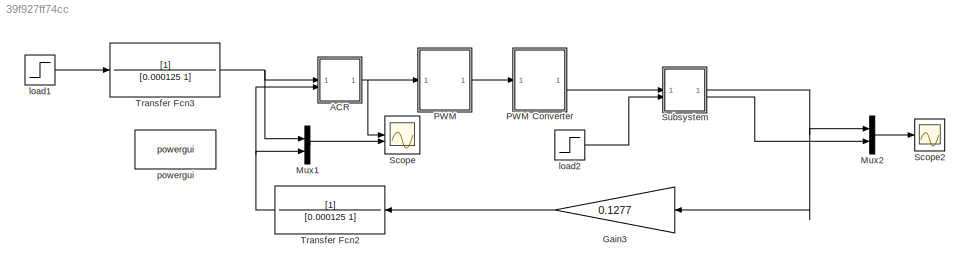
MODEL slx_39f927ff74cc
KIND model
CONFIG AbsTol = auto
CONFIG EnableMultiTasking = off
CONFIG FixedStep = auto
CONFIG MaxStep = 1e-5
CONFIG MinStep = auto
CONFIG RelTol = 1e-3
CONFIG SampleTimeConstraint = Unconstrained
CONFIG SolverName = ode45
CONFIG StartTime = 0.0
CONFIG StopTime = 0.05
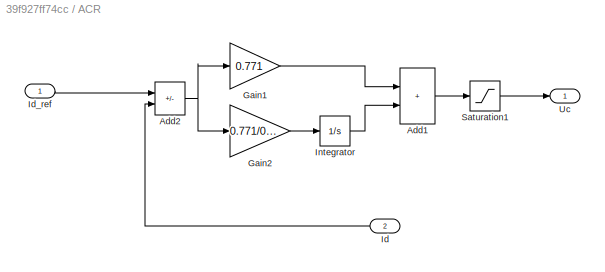
BLOCK [SubSystem] ACR
BLOCK [Sum] ACR/Add1
  IconShape = rectangular
BLOCK [Sum] ACR/Add2
  IconShape = rectangular
  Inputs = +-
BLOCK [Gain] ACR/Gain1
  Gain = 0.771
BLOCK [Gain] ACR/Gain2
  Gain = 0.771/0.0144
BLOCK [Inport] ACR/Id
  Port = 2
BLOCK [Inport] ACR/Id_ref
BLOCK [Integrator] ACR/Integrator
  LimitOutput = on
  LowerSaturationLimit = -5
  UpperSaturationLimit = 5
BLOCK [Saturate] ACR/Saturation1
  LowerLimit = -5
  UpperLimit = 5
BLOCK [Outport] ACR/Uc
BLOCK [Gain] Gain3
  Gain = 0.1277
BLOCK [Mux] Mux1
  DisplayOption = bar
  Inputs = 2
BLOCK [Mux] Mux2
  DisplayOption = bar
  Inputs = 2
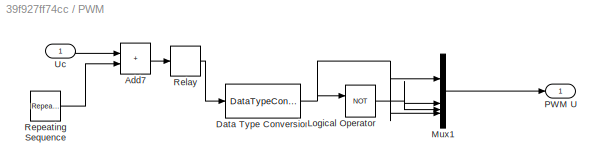
BLOCK [SubSystem] PWM
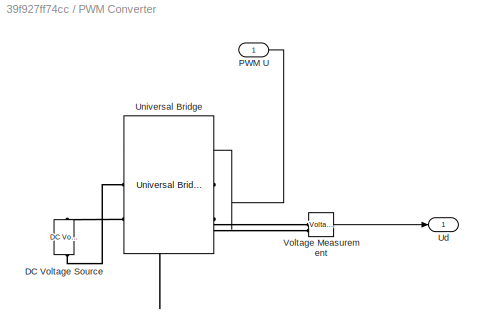
BLOCK [SubSystem] PWM Converter
BLOCK [Reference] PWM Converter/DC Voltage Source  REF=spsDCVoltageSourceLib/DC Voltage Source
  LibrarySourceBlock = sps_lib/Sources/DC Voltage Source
  NameLocation = top
  SourceBlock = spsDCVoltageSourceLib/DC Voltage Source
  SourceType = DC Voltage Source
BLOCK [Inport] PWM Converter/PWM U
BLOCK [Outport] PWM Converter/Ud
BLOCK [Reference] PWM Converter/Universal Bridge  REF=spsUniversalBridgeLib/Universal Bridge
  LibrarySourceBlock = sps_lib/Power Electronics/Universal Bridge
  NameLocation = top
  SourceBlock = spsUniversalBridgeLib/Universal Bridge
  SourceType = Universal Bridge
BLOCK [Reference] PWM Converter/Voltage Measurement  REF=spsVoltageMeasurementLib/Voltage Measurement
  LibrarySourceBlock = sps_lib/Sensors and Measurements/Voltage Measurement
  SourceBlock = spsVoltageMeasurementLib/Voltage Measurement
  SourceType = Voltage Measurement
  UserDataPersistent = on
BLOCK [Sum] PWM/Add7
  IconShape = rectangular
BLOCK [DataTypeConversion] PWM/Data Type Conversion
  OutDataTypeStr = boolean
  RndMeth = Floor
  SaturateOnIntegerOverflow = off
BLOCK [Logic] PWM/Logical Operator
  AllPortsSameDT = off
  Operator = NOT
  OutDataTypeStr = boolean
BLOCK [Mux] PWM/Mux1
  DisplayOption = signals
BLOCK [Outport] PWM/PWM U
BLOCK [Relay] PWM/Relay
  OffSwitchValue = 0
  OnSwitchValue = 0
BLOCK [Reference] PWM/Repeating Sequence  REF=simulink/Sources/Repeating
Sequence
  SourceBlock = simulink/Sources/Repeating\nSequence
  SourceType = Repeating table
BLOCK [Inport] PWM/Uc
BLOCK [Scope] Scope
  Floating = off
  NumInputPorts = 2
  ScopeSpecificationString = Simulink.scopes.TimeScopeBlockCfg('CurrentConfiguration', extmgr.ConfigurationSet(extmgr.Configuration('Core','General UI',true),extmgr.Configuration('Core','Source UI',true),extmgr.Configuration('Sources','WiredSimulink',true,'DataLoggingVariableName','ScopeData1'),extmgr.Configuration('Visuals','Time Domain',true,'SerializedDisplays',{struct('MinYLimReal','-1.38289','MaxYLimReal','11.34421','YLa...<+1473ch>
BLOCK [Scope] Scope2
  Floating = off
  NumInputPorts = 1
  ScopeSpecificationString = Simulink.scopes.TimeScopeBlockCfg('CurrentConfiguration', extmgr.ConfigurationSet(extmgr.Configuration('Core','General UI',true),extmgr.Configuration('Core','Source UI',true),extmgr.Configuration('Sources','WiredSimulink',true,'DataLoggingVariableName','ScopeData2'),extmgr.Configuration('Visuals','Time Domain',true,'SerializedDisplays',{struct('MinYLimReal','-14.43657','MaxYLimReal','92.31696','YL...<+1507ch>
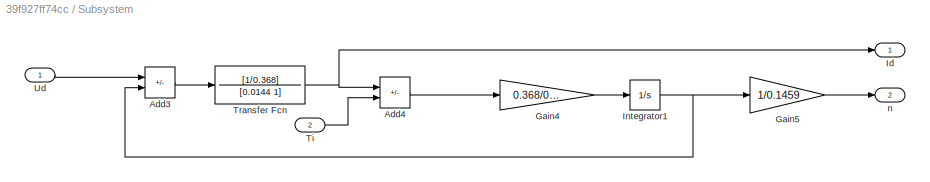
BLOCK [SubSystem] Subsystem
BLOCK [Sum] Subsystem/Add3
  IconShape = rectangular
  Inputs = +-
BLOCK [Sum] Subsystem/Add4
  IconShape = rectangular
  Inputs = +-
BLOCK [Gain] Subsystem/Gain4
  Gain = 0.368/0.18
BLOCK [Gain] Subsystem/Gain5
  Gain = 1/0.1459
BLOCK [Outport] Subsystem/Id
BLOCK [Integrator] Subsystem/Integrator1
BLOCK [Inport] Subsystem/Ti
  Port = 2
BLOCK [TransferFcn] Subsystem/Transfer Fcn
  Denominator = [0.0144 1]
  Numerator = [1/0.368]
BLOCK [Inport] Subsystem/Ud
BLOCK [Outport] Subsystem/n
  Port = 2
BLOCK [TransferFcn] Transfer Fcn2
  Denominator = [0.000125 1]
BLOCK [TransferFcn] Transfer Fcn3
  Denominator = [0.000125 1]
BLOCK [Step] load1
  After = 10
  SampleTime = 0
  Time = 0
BLOCK [Step] load2
  After = 10
  SampleTime = 0
  Time = 0
BLOCK [Reference] powergui  REF=sps_lib/powergui
  LibrarySourceBlock = sps_lib/powergui
  Priority = 1
  SourceBlock = sps_lib/powergui
  SourceType = PSB option menu block
LINE ACR/Add1:1 -> ACR/Saturation1:1
NET ACR/Add2:1 -> ACR/Gain1:1, ACR/Gain2:1
LINE ACR/Gain1:1 -> ACR/Add1:1
LINE ACR/Gain2:1 -> ACR/Integrator:1
LINE ACR/Id:1 -> ACR/Add2:2
LINE ACR/Id_ref:1 -> ACR/Add2:1
LINE ACR/Integrator:1 -> ACR/Add1:2
LINE ACR/Saturation1:1 -> ACR/Uc:1
NET ACR:1 -> PWM:1, Scope:1
LINE Gain3:1 -> Transfer Fcn2:1
LINE Mux1:1 -> Scope:2
LINE Mux2:1 -> Scope2:1
LINE PWM Converter/PWM U:1 -> PWM Converter/Universal Bridge:1
LINE PWM Converter/Voltage Measurement:1 -> PWM Converter/Ud:1
LINE PWM Converter:1 -> Subsystem:1
LINE PWM/Add7:1 -> PWM/Relay:1
NET PWM/Data Type Conversion:1 -> PWM/Logical Operator:1, PWM/Mux1:1, PWM/Mux1:4
NET PWM/Logical Operator:1 -> PWM/Mux1:2, PWM/Mux1:3
LINE PWM/Mux1:1 -> PWM/PWM U:1
LINE PWM/Relay:1 -> PWM/Data Type Conversion:1
LINE PWM/Repeating Sequence:1 -> PWM/Add7:2
LINE PWM/Uc:1 -> PWM/Add7:1
LINE PWM:1 -> PWM Converter:1
LINE Subsystem/Add3:1 -> Subsystem/Transfer Fcn:1
LINE Subsystem/Add4:1 -> Subsystem/Gain4:1
LINE Subsystem/Gain4:1 -> Subsystem/Integrator1:1
LINE Subsystem/Gain5:1 -> Subsystem/n:1
NET Subsystem/Integrator1:1 -> Subsystem/Add3:2, Subsystem/Gain5:1
LINE Subsystem/Ti:1 -> Subsystem/Add4:2
NET Subsystem/Transfer Fcn:1 -> Subsystem/Add4:1, Subsystem/Id:1
LINE Subsystem/Ud:1 -> Subsystem/Add3:1
NET Subsystem:1 -> Gain3:1, Mux2:1
LINE Subsystem:2 -> Mux2:2
NET Transfer Fcn2:1 -> ACR:2, Mux1:2
NET Transfer Fcn3:1 -> ACR:1, Mux1:1
LINE load1:1 -> Transfer Fcn3:1
LINE load2:1 -> Subsystem:2
PLINE PWM Converter/DC Voltage Source:LConn1 -- PWM Converter/Universal Bridge:RConn2
PLINE PWM Converter/DC Voltage Source:RConn1 -- PWM Converter/Universal Bridge:RConn1
PLINE PWM Converter/Universal Bridge:LConn1 -- PWM Converter/Voltage Measurement:LConn1
PLINE PWM Converter/Universal Bridge:LConn2 -- PWM Converter/Voltage Measurement:LConn2
note: NET lines group one-source signal fan-out (src -> all destinations, sorted); 1:1 wires keep LINE
